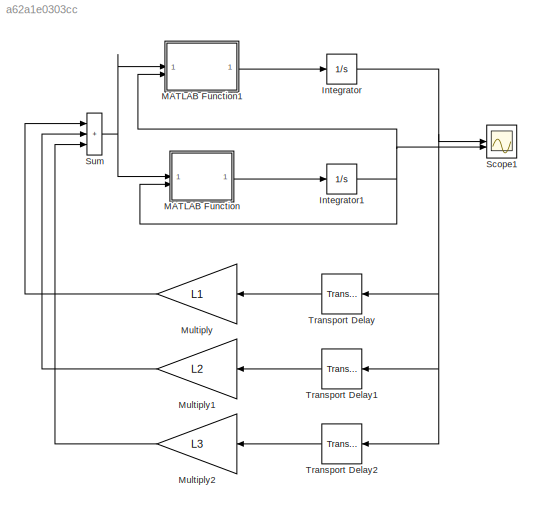
MODEL slx_a62a1e0303cc
KIND model
CONFIG AbsTol = auto
CONFIG EnableMultiTasking = off
CONFIG FixedStep = auto
CONFIG MaxStep = auto
CONFIG MinStep = auto
CONFIG RelTol = 1e-6
CONFIG SampleTimeConstraint = Unconstrained
CONFIG SolverName = VariableStepAuto
CONFIG StartTime = 0.0
CONFIG StopTime = t_end
BLOCK [Integrator] Integrator
  InitialCondition = x0
BLOCK [Integrator] Integrator1
  InitialCondition = a0
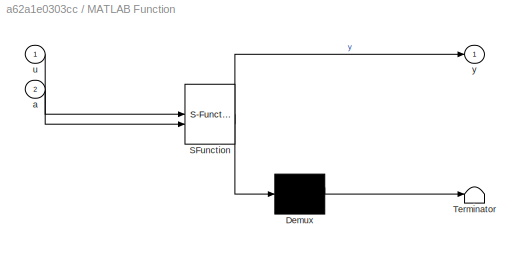
BLOCK [SubSystem] MATLAB Function
  ErrorFcn = Stateflow.Translate.translate
  LibrarySourceBlock = simulink/User-Defined\nFunctions/MATLAB Function
  PermitHierarchicalResolution = ExplicitOnly
  SFBlockType = MATLAB Function
  TreatAsAtomicUnit = on
BLOCK [Demux] MATLAB Function/ Demux 
  Outputs = 1
BLOCK [S-Function] MATLAB Function/ SFunction 
  EnableBusSupport = on
  FunctionName = sf_sfun
  PortCounts = [2 2]
  SFcnIsStateOwnerBlock = off
  SFunctionDeploymentMode = off
  Tag = Stateflow S-Function 2
BLOCK [Terminator] MATLAB Function/ Terminator 
BLOCK [Inport] MATLAB Function/a
  Port = 2
BLOCK [Inport] MATLAB Function/u
BLOCK [Outport] MATLAB Function/y
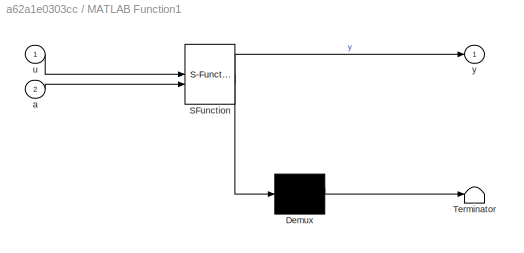
BLOCK [SubSystem] MATLAB Function1
  ErrorFcn = Stateflow.Translate.translate
  PermitHierarchicalResolution = ExplicitOnly
  SFBlockType = MATLAB Function
  TreatAsAtomicUnit = on
BLOCK [Demux] MATLAB Function1/ Demux 
  Outputs = 1
BLOCK [S-Function] MATLAB Function1/ SFunction 
  EnableBusSupport = on
  FunctionName = sf_sfun
  PortCounts = [2 2]
  SFcnIsStateOwnerBlock = off
  SFunctionDeploymentMode = off
  Tag = Stateflow S-Function 1
BLOCK [Terminator] MATLAB Function1/ Terminator 
BLOCK [Inport] MATLAB Function1/a
  Port = 2
BLOCK [Inport] MATLAB Function1/u
BLOCK [Outport] MATLAB Function1/y
  VectorParamsAs1DForOutWhenUnconnected = off
BLOCK [Gain] Multiply
  Gain = L1
  Multiplication = Matrix(K*u) (u vector)
BLOCK [Gain] Multiply1
  Gain = L2
  Multiplication = Matrix(K*u) (u vector)
BLOCK [Gain] Multiply2
  Gain = L3
  Multiplication = Matrix(K*u) (u vector)
BLOCK [Scope] Scope1
  Floating = off
  NumInputPorts = 2
  ScopeSpecificationString = Simulink.scopes.TimeScopeBlockCfg('CurrentConfiguration', extmgr.ConfigurationSet(extmgr.Configuration('Core','General UI',true),extmgr.Configuration('Core','Source UI',true),extmgr.Configuration('Sources','WiredSimulink',true,'DataLogging',true),extmgr.Configuration('Visuals','Time Domain',true,'SerializedDisplays',{struct('MinYLimReal','-6.15916','MaxYLimReal','6.05547','YLabelReal','','MinYLimM...<+2478ch>
BLOCK [Sum] Sum
  IconShape = rectangular
  Inputs = |+++
BLOCK [TransportDelay] Transport Delay
  DelayTime = tau1
BLOCK [TransportDelay] Transport Delay1
  DelayTime = tau2
BLOCK [TransportDelay] Transport Delay2
  DelayTime = tau3
NET Integrator1:1 -> MATLAB Function1:2, MATLAB Function:2, Scope1:2
NET Integrator:1 -> Scope1:1, Transport Delay1:1, Transport Delay2:1, Transport Delay:1
LINE MATLAB Function1:1 -> Integrator:1
LINE MATLAB Function:1 -> Integrator1:1
LINE Multiply1:1 -> Sum:2
LINE Multiply2:1 -> Sum:3
LINE Multiply:1 -> Sum:1
NET Sum:1 -> MATLAB Function1:1, MATLAB Function:1
LINE Transport Delay1:1 -> Multiply1:1
LINE Transport Delay2:1 -> Multiply2:1
LINE Transport Delay:1 -> Multiply:1
note: NET lines group one-source signal fan-out (src -> all destinations, sorted); 1:1 wires keep LINE
CHART MATLAB Function1 states=1 transitions=1
  STATE_LABEL 'eML_blk_kernel()'
  STATE_LABEL 'SCRIPT:\nfunction y = fcn(u,a)\n    y = -inv(kron(diag(a),eye(3)))*u;\nend\n'
CHART MATLAB Function states=1 transitions=1
  STATE_LABEL 'eML_blk_kernel()'
  STATE_LABEL 'SCRIPT:\nfunction y= fcn(u,a)\ngamma = ones(9,1)*0.1;\ny1 = gamma(1)*norm(u(1:3),2)/a(1);\ny2 = gamma(2)*norm(u(4:6),2)/a(2);\ny3 = gamma(3)*norm(u(7:9),2)/a(3);\ny4 = gamma(4)*norm(u(10:12),2)/a(4);\ny5 = gamma(5)*norm(u(13:15),2)/a(5);\ny6 = gamma(6)*norm(u(16:18),2)/a(6);\ny7 = gamma(7)*norm(u(19:21),2)/a(7);\ny8 = gamma(8)*norm(u(22:24),2)/a(8);\ny9 = gamma(9)*norm(u(25:27),2)/a(9);\ny = [y1;y2;y3;y4;y5;y...<+16ch>'
CHART  states=0 transitions=0
CHART  states=0 transitions=0
